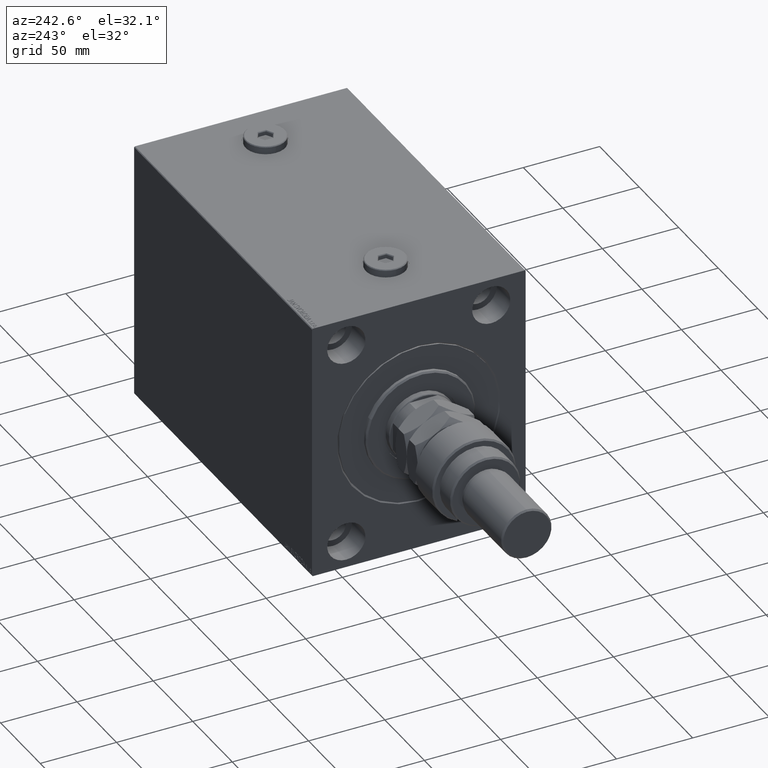
[diagram: clean part render]
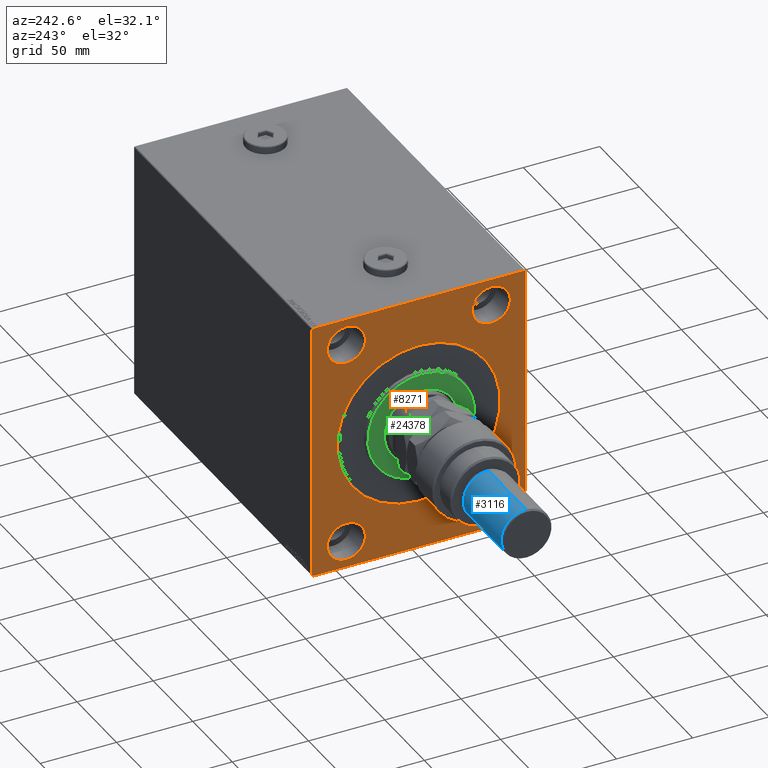
[diagram: same view with three faces highlighted in distinct colors, each labeled with its STEP entity id]
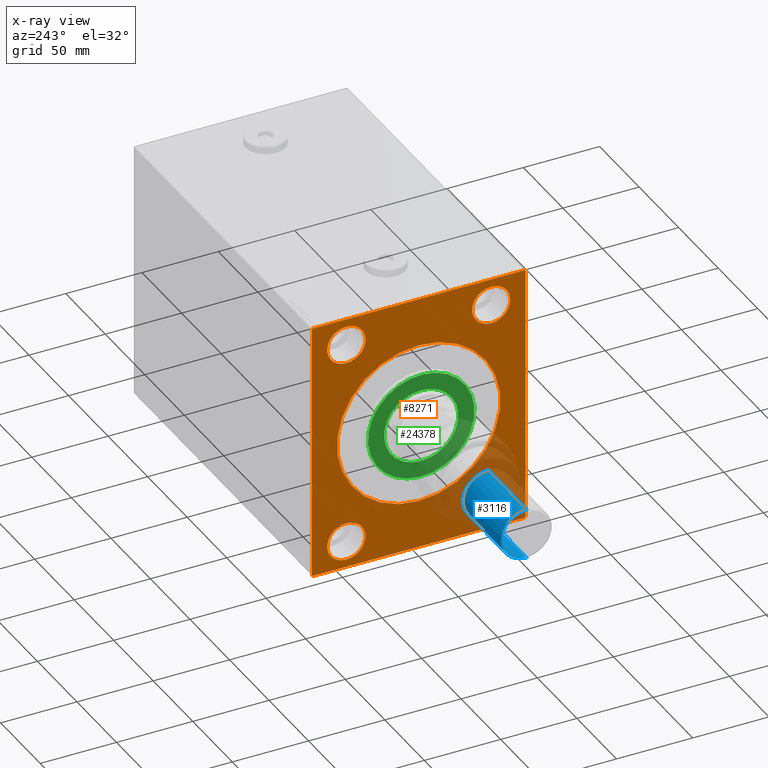
[diagram: x-ray of the same camera — body ghosted, the three highlighted faces saturated]
A machine part, auxiliary view with three faces highlighted in distinct colors.
The next image is the same camera in x-ray (body ghosted, the three faces saturated) — at least one of them is partly hidden behind the body in this view.
Their STEP definitions:

[orange] entity #8271 — the highlighted planar face has unit normal (1, 0, 0).
#947 = EDGE_CURVE ( 'NONE', #11562, #45831, #23535, .T. ) ;
#1080 = DIRECTION ( 'NONE',  ( -0.000000000000000000, -0.7071067811865376918, 0.7071067811865573427 ) ) ;
#1349 = PLANE ( 'NONE',  #42461 ) ;
#1682 = LINE ( 'NONE', #23888, #29622 ) ;
#1723 = ORIENTED_EDGE ( 'NONE', *, *, #48134, .T. ) ;
#2299 = DIRECTION ( 'NONE',  ( 0.000000000000000000, 0.000000000000000000, -1.000000000000000000 ) ) ;
#2456 = CARTESIAN_POINT ( 'NONE',  ( 0.000000000000000000, 0.000000000000000000, 0.000000000000000000 ) ) ;
#2510 = DIRECTION ( 'NONE',  ( 0.000000000000000000, -0.7071067811865573427, -0.7071067811865376918 ) ) ;
#2927 = ORIENTED_EDGE ( 'NONE', *, *, #947, .F. ) ;
#3632 = VERTEX_POINT ( 'NONE', #46007 ) ;
#3767 = CARTESIAN_POINT ( 'NONE',  ( 0.000000000000000000, 69.50000000000004263, 85.00000000000000000 ) ) ;
#3813 = EDGE_CURVE ( 'NONE', #25728, #8741, #11296, .T. ) ;
#4058 = AXIS2_PLACEMENT_3D ( 'NONE', #7843, #26160, #41273 ) ;
#5223 = LINE ( 'NONE', #20816, #15224 ) ;
#5600 = CARTESIAN_POINT ( 'NONE',  ( 0.000000000000000000, -69.99999999999998579, 84.99999999999998579 ) ) ;
#5877 = VECTOR ( 'NONE', #23368, 1000.000000000000000 ) ;
#6795 = CIRCLE ( 'NONE', #30934, 12.49999999999999645 ) ;
#7183 = CARTESIAN_POINT ( 'NONE',  ( 0.000000000000000000, 47.50000000000000711, 80.00000000000001421 ) ) ;
#7218 = EDGE_LOOP ( 'NONE', ( #47800, #2927 ) ) ;
#7333 = AXIS2_PLACEMENT_3D ( 'NONE', #32357, #47256, #39685 ) ;
#7460 = CARTESIAN_POINT ( 'NONE',  ( 0.000000000000000000, 6.551860375438332793E-15, -53.49999999999994316 ) ) ;
#7501 = EDGE_CURVE ( 'NONE', #42741, #10054, #28038, .T. ) ;
#7751 = LINE ( 'NONE', #15548, #5877 ) ;
#7843 = CARTESIAN_POINT ( 'NONE',  ( 0.000000000000000000, 47.50000000000000711, 67.50000000000000000 ) ) ;
#7857 = CARTESIAN_POINT ( 'NONE',  ( 0.000000000000000000, -47.49999999999997868, 80.00000000000001421 ) ) ;
#8146 = VERTEX_POINT ( 'NONE', #25524 ) ;
#8271 = ADVANCED_FACE ( 'NONE', ( #41351, #19630, #31102, #12558, #37944, #26710 ), #1349, .F. ) ;
#8741 = VERTEX_POINT ( 'NONE', #39808 ) ;
#8779 = EDGE_CURVE ( 'NONE', #12817, #31047, #35078, .T. ) ;
#8842 = AXIS2_PLACEMENT_3D ( 'NONE', #38520, #46089, #31426 ) ;
#9293 = ORIENTED_EDGE ( 'NONE', *, *, #7501, .F. ) ;
#10054 = VERTEX_POINT ( 'NONE', #29371 ) ;
#10449 = EDGE_CURVE ( 'NONE', #11951, #30487, #14422, .T. ) ;
#10503 = CIRCLE ( 'NONE', #41672, 12.50000000000001066 ) ;
#11296 = LINE ( 'NONE', #44263, #24364 ) ;
#11341 = EDGE_CURVE ( 'NONE', #36696, #10054, #5223, .T. ) ;
#11378 = ORIENTED_EDGE ( 'NONE', *, *, #10449, .T. ) ;
#11562 = VERTEX_POINT ( 'NONE', #28738 ) ;
#11951 = VERTEX_POINT ( 'NONE', #30603 ) ;
#12074 = CARTESIAN_POINT ( 'NONE',  ( 0.000000000000000000, 0.000000000000000000, 0.000000000000000000 ) ) ;
#12187 = AXIS2_PLACEMENT_3D ( 'NONE', #26407, #30065, #27135 ) ;
#12558 = FACE_BOUND ( 'NONE', #7218, .T. ) ;
#12817 = VERTEX_POINT ( 'NONE', #45336 ) ;
#12948 = DIRECTION ( 'NONE',  ( 0.000000000000000000, 0.000000000000000000, -1.000000000000000000 ) ) ;
#13595 = VECTOR ( 'NONE', #41912, 1000.000000000000000 ) ;
#14422 = CIRCLE ( 'NONE', #41704, 53.49999999999994316 ) ;
#15052 = CIRCLE ( 'NONE', #38446, 12.50000000000001066 ) ;
#15224 = VECTOR ( 'NONE', #1080, 1000.000000000000114 ) ;
#15454 = ORIENTED_EDGE ( 'NONE', *, *, #11341, .T. ) ;
#15548 = CARTESIAN_POINT ( 'NONE',  ( 0.000000000000000000, -69.99999999999998579, 84.49999999999998579 ) ) ;
#16076 = ORIENTED_EDGE ( 'NONE', *, *, #8779, .F. ) ;
#16300 = EDGE_CURVE ( 'NONE', #45462, #3632, #6795, .T. ) ;
#17265 = ORIENTED_EDGE ( 'NONE', *, *, #28286, .F. ) ;
#17411 = CARTESIAN_POINT ( 'NONE',  ( 0.000000000000000000, 69.50000000000004263, 85.00000000000000000 ) ) ;
#18165 = EDGE_CURVE ( 'NONE', #36163, #47028, #46479, .T. ) ;
#18512 = ORIENTED_EDGE ( 'NONE', *, *, #44496, .F. ) ;
#18666 = ORIENTED_EDGE ( 'NONE', *, *, #25749, .T. ) ;
#18893 = CARTESIAN_POINT ( 'NONE',  ( 0.000000000000000000, -69.50000000000001421, -85.00000000000002842 ) ) ;
#19251 = DIRECTION ( 'NONE',  ( 0.000000000000000000, 1.000000000000000000, 9.912705577010325549E-17 ) ) ;
#19630 = FACE_BOUND ( 'NONE', #26495, .T. ) ;
#20720 = DIRECTION ( 'NONE',  ( 0.000000000000000000, 0.000000000000000000, -1.000000000000000000 ) ) ;
#20816 = CARTESIAN_POINT ( 'NONE',  ( 0.000000000000000000, -69.50000000000001421, -85.00000000000002842 ) ) ;
#20910 = CARTESIAN_POINT ( 'NONE',  ( 0.000000000000000000, -69.99999999999998579, 84.49999999999998579 ) ) ;
#21693 = ORIENTED_EDGE ( 'NONE', *, *, #3813, .F. ) ;
#22049 = LINE ( 'NONE', #3767, #29483 ) ;
#23368 = DIRECTION ( 'NONE',  ( -0.000000000000000000, 0.7071067811865672237, 0.7071067811865279218 ) ) ;
#23466 = CARTESIAN_POINT ( 'NONE',  ( 0.000000000000000000, 47.50000000000000711, -67.50000000000000000 ) ) ;
#23535 = CIRCLE ( 'NONE', #4058, 12.50000000000001066 ) ;
#23684 = EDGE_CURVE ( 'NONE', #25728, #31047, #22049, .T. ) ;
#23888 = CARTESIAN_POINT ( 'NONE',  ( 0.000000000000000000, -69.99999999999998579, -85.00000000000002842 ) ) ;
#23927 = CARTESIAN_POINT ( 'NONE',  ( 0.000000000000000000, -47.49999999999997868, 67.50000000000000000 ) ) ;
#24020 = DIRECTION ( 'NONE',  ( 1.000000000000000000, 0.000000000000000000, 0.000000000000000000 ) ) ;
#24171 = EDGE_LOOP ( 'NONE', ( #9293, #1723, #21693, #25117, #16076, #30933, #17265, #15454 ) ) ;
#24364 = VECTOR ( 'NONE', #29117, 1000.000000000000000 ) ;
#24448 = CARTESIAN_POINT ( 'NONE',  ( 0.000000000000000000, 70.00000000000001421, 84.50000000000001421 ) ) ;
#24906 = CIRCLE ( 'NONE', #33460, 53.49999999999994316 ) ;
#25031 = EDGE_CURVE ( 'NONE', #3632, #45462, #38101, .T. ) ;
#25117 = ORIENTED_EDGE ( 'NONE', *, *, #23684, .T. ) ;
#25524 = CARTESIAN_POINT ( 'NONE',  ( 0.000000000000000000, 69.50000000000007105, -85.00000000000001421 ) ) ;
#25728 = VERTEX_POINT ( 'NONE', #17411 ) ;
#25749 = EDGE_CURVE ( 'NONE', #30487, #11951, #24906, .T. ) ;
#26160 = DIRECTION ( 'NONE',  ( -1.000000000000000000, 0.000000000000000000, 0.000000000000000000 ) ) ;
#26407 = CARTESIAN_POINT ( 'NONE',  ( 0.000000000000000000, -47.49999999999999289, -67.50000000000000000 ) ) ;
#26469 = DIRECTION ( 'NONE',  ( 0.000000000000000000, 0.000000000000000000, -1.000000000000000000 ) ) ;
#26495 = EDGE_LOOP ( 'NONE', ( #31766, #37300 ) ) ;
#26612 = CARTESIAN_POINT ( 'NONE',  ( 0.000000000000000000, 47.50000000000000711, -67.50000000000000000 ) ) ;
#26710 = FACE_OUTER_BOUND ( 'NONE', #24171, .T. ) ;
#27065 = VERTEX_POINT ( 'NONE', #28131 ) ;
#27135 = DIRECTION ( 'NONE',  ( 0.000000000000000000, 0.000000000000000000, 1.000000000000000000 ) ) ;
#27821 = DIRECTION ( 'NONE',  ( 0.000000000000000000, 0.000000000000000000, 1.000000000000000000 ) ) ;
#28038 = LINE ( 'NONE', #5600, #38517 ) ;
#28131 = CARTESIAN_POINT ( 'NONE',  ( 0.000000000000000000, -47.49999999999997868, 55.00000000000000000 ) ) ;
#28286 = EDGE_CURVE ( 'NONE', #36696, #8146, #1682, .T. ) ;
#28738 = CARTESIAN_POINT ( 'NONE',  ( 0.000000000000000000, 47.50000000000000711, 55.00000000000000000 ) ) ;
#29117 = DIRECTION ( 'NONE',  ( 0.000000000000000000, -1.000000000000000000, -9.912705577010325549E-17 ) ) ;
#29371 = CARTESIAN_POINT ( 'NONE',  ( 0.000000000000000000, -69.99999999999998579, -84.50000000000004263 ) ) ;
#29483 = VECTOR ( 'NONE', #48177, 1000.000000000000114 ) ;
#29622 = VECTOR ( 'NONE', #19251, 1000.000000000000000 ) ;
#30065 = DIRECTION ( 'NONE',  ( -1.000000000000000000, 0.000000000000000000, 0.000000000000000000 ) ) ;
#30487 = VERTEX_POINT ( 'NONE', #7460 ) ;
#30585 = DIRECTION ( 'NONE',  ( -1.000000000000000000, 0.000000000000000000, 0.000000000000000000 ) ) ;
#30603 = CARTESIAN_POINT ( 'NONE',  ( 0.000000000000000000, 0.000000000000000000, 53.49999999999994316 ) ) ;
#30933 = ORIENTED_EDGE ( 'NONE', *, *, #35487, .T. ) ;
#30934 = AXIS2_PLACEMENT_3D ( 'NONE', #26612, #41992, #41495 ) ;
#31047 = VERTEX_POINT ( 'NONE', #24448 ) ;
#31102 = FACE_BOUND ( 'NONE', #41020, .T. ) ;
#31426 = DIRECTION ( 'NONE',  ( 0.000000000000000000, 0.000000000000000000, 1.000000000000000000 ) ) ;
#31766 = ORIENTED_EDGE ( 'NONE', *, *, #16300, .F. ) ;
#32357 = CARTESIAN_POINT ( 'NONE',  ( 0.000000000000000000, 47.50000000000000711, 67.50000000000000000 ) ) ;
#32899 = VECTOR ( 'NONE', #2510, 1000.000000000000114 ) ;
#33460 = AXIS2_PLACEMENT_3D ( 'NONE', #39381, #24020, #2299 ) ;
#33724 = DIRECTION ( 'NONE',  ( 0.000000000000000000, 0.000000000000000000, 1.000000000000000000 ) ) ;
#33852 = CIRCLE ( 'NONE', #7333, 12.50000000000001066 ) ;
#35039 = EDGE_LOOP ( 'NONE', ( #39806, #18512 ) ) ;
#35078 = LINE ( 'NONE', #45821, #13595 ) ;
#35135 = ORIENTED_EDGE ( 'NONE', *, *, #43273, .F. ) ;
#35487 = EDGE_CURVE ( 'NONE', #12817, #8146, #46912, .T. ) ;
#35693 = CARTESIAN_POINT ( 'NONE',  ( 0.000000000000000000, 70.00000000000002842, -84.50000000000007105 ) ) ;
#36163 = VERTEX_POINT ( 'NONE', #41699 ) ;
#36353 = ORIENTED_EDGE ( 'NONE', *, *, #38747, .F. ) ;
#36696 = VERTEX_POINT ( 'NONE', #18893 ) ;
#37104 = VERTEX_POINT ( 'NONE', #7857 ) ;
#37300 = ORIENTED_EDGE ( 'NONE', *, *, #25031, .F. ) ;
#37620 = DIRECTION ( 'NONE',  ( -1.000000000000000000, 0.000000000000000000, 0.000000000000000000 ) ) ;
#37944 = FACE_BOUND ( 'NONE', #35039, .T. ) ;
#38101 = CIRCLE ( 'NONE', #39677, 12.49999999999999645 ) ;
#38446 = AXIS2_PLACEMENT_3D ( 'NONE', #45231, #30585, #45476 ) ;
#38517 = VECTOR ( 'NONE', #20720, 1000.000000000000000 ) ;
#38520 = CARTESIAN_POINT ( 'NONE',  ( 0.000000000000000000, -47.49999999999999289, -67.50000000000000000 ) ) ;
#38747 = EDGE_CURVE ( 'NONE', #37104, #27065, #15052, .T. ) ;
#39381 = CARTESIAN_POINT ( 'NONE',  ( 0.000000000000000000, 0.000000000000000000, 0.000000000000000000 ) ) ;
#39547 = CARTESIAN_POINT ( 'NONE',  ( 0.000000000000000000, 47.50000000000000711, -55.00000000000000711 ) ) ;
#39677 = AXIS2_PLACEMENT_3D ( 'NONE', #23466, #37620, #33724 ) ;
#39685 = DIRECTION ( 'NONE',  ( 0.000000000000000000, 0.000000000000000000, 1.000000000000000000 ) ) ;
#39806 = ORIENTED_EDGE ( 'NONE', *, *, #18165, .F. ) ;
#39808 = CARTESIAN_POINT ( 'NONE',  ( 0.000000000000000000, -69.49999999999997158, 84.99999999999998579 ) ) ;
#41020 = EDGE_LOOP ( 'NONE', ( #36353, #35135 ) ) ;
#41273 = DIRECTION ( 'NONE',  ( 0.000000000000000000, 0.000000000000000000, 1.000000000000000000 ) ) ;
#41351 = FACE_BOUND ( 'NONE', #41683, .T. ) ;
#41495 = DIRECTION ( 'NONE',  ( 0.000000000000000000, 0.000000000000000000, 1.000000000000000000 ) ) ;
#41595 = DIRECTION ( 'NONE',  ( 1.000000000000000000, 0.000000000000000000, 0.000000000000000000 ) ) ;
#41672 = AXIS2_PLACEMENT_3D ( 'NONE', #23927, #42960, #27821 ) ;
#41683 = EDGE_LOOP ( 'NONE', ( #11378, #18666 ) ) ;
#41699 = CARTESIAN_POINT ( 'NONE',  ( 0.000000000000000000, -47.49999999999999289, -55.00000000000000711 ) ) ;
#41704 = AXIS2_PLACEMENT_3D ( 'NONE', #2456, #43451, #12948 ) ;
#41912 = DIRECTION ( 'NONE',  ( 0.000000000000000000, -8.163404592832031500E-17, 1.000000000000000000 ) ) ;
#41992 = DIRECTION ( 'NONE',  ( -1.000000000000000000, 0.000000000000000000, 0.000000000000000000 ) ) ;
#42461 = AXIS2_PLACEMENT_3D ( 'NONE', #12074, #41595, #26469 ) ;
#42741 = VERTEX_POINT ( 'NONE', #20910 ) ;
#42960 = DIRECTION ( 'NONE',  ( -1.000000000000000000, 0.000000000000000000, 0.000000000000000000 ) ) ;
#43273 = EDGE_CURVE ( 'NONE', #27065, #37104, #10503, .T. ) ;
#43422 = CARTESIAN_POINT ( 'NONE',  ( 0.000000000000000000, -47.49999999999999289, -80.00000000000000000 ) ) ;
#43451 = DIRECTION ( 'NONE',  ( 1.000000000000000000, 0.000000000000000000, 0.000000000000000000 ) ) ;
#44263 = CARTESIAN_POINT ( 'NONE',  ( 0.000000000000000000, 70.00000000000001421, 85.00000000000000000 ) ) ;
#44496 = EDGE_CURVE ( 'NONE', #47028, #36163, #47022, .T. ) ;
#45231 = CARTESIAN_POINT ( 'NONE',  ( 0.000000000000000000, -47.49999999999997868, 67.50000000000000000 ) ) ;
#45336 = CARTESIAN_POINT ( 'NONE',  ( 0.000000000000000000, 70.00000000000002842, -84.50000000000007105 ) ) ;
#45462 = VERTEX_POINT ( 'NONE', #39547 ) ;
#45476 = DIRECTION ( 'NONE',  ( 0.000000000000000000, 0.000000000000000000, 1.000000000000000000 ) ) ;
#45821 = CARTESIAN_POINT ( 'NONE',  ( 0.000000000000000000, 70.00000000000002842, -85.00000000000001421 ) ) ;
#45831 = VERTEX_POINT ( 'NONE', #7183 ) ;
#46007 = CARTESIAN_POINT ( 'NONE',  ( 0.000000000000000000, 47.50000000000000711, -80.00000000000000000 ) ) ;
#46089 = DIRECTION ( 'NONE',  ( -1.000000000000000000, 0.000000000000000000, 0.000000000000000000 ) ) ;
#46296 = EDGE_CURVE ( 'NONE', #45831, #11562, #33852, .T. ) ;
#46479 = CIRCLE ( 'NONE', #12187, 12.49999999999999645 ) ;
#46912 = LINE ( 'NONE', #35693, #32899 ) ;
#47022 = CIRCLE ( 'NONE', #8842, 12.49999999999999645 ) ;
#47028 = VERTEX_POINT ( 'NONE', #43422 ) ;
#47256 = DIRECTION ( 'NONE',  ( -1.000000000000000000, 0.000000000000000000, 0.000000000000000000 ) ) ;
#47800 = ORIENTED_EDGE ( 'NONE', *, *, #46296, .F. ) ;
#48134 = EDGE_CURVE ( 'NONE', #42741, #8741, #7751, .T. ) ;
#48177 = DIRECTION ( 'NONE',  ( -0.000000000000000000, 0.7071067811865376918, -0.7071067811865573427 ) ) ;

[blue] entity #3116 — the highlighted cylindrical surface (edge-blend (fillet) strip) has radius 16.5 mm, axis along (1, -0, -0).
#1802 = VECTOR ( 'NONE', #46174, 1000.000000000000000 ) ;
#2231 = CIRCLE ( 'NONE', #12365, 16.50000000000000000 ) ;
#3024 = CYLINDRICAL_SURFACE ( 'NONE', #44604, 16.50000000000000000 ) ;
#3116 = ADVANCED_FACE ( 'NONE', ( #34161 ), #3024, .T. ) ;
#3351 = VERTEX_POINT ( 'NONE', #19944 ) ;
#3955 = AXIS2_PLACEMENT_3D ( 'NONE', #20185, #24088, #8721 ) ;
#4643 = CARTESIAN_POINT ( 'NONE',  ( 16.50000000000000000, 2.020667218593133100E-15, 39.99999999999998579 ) ) ;
#4703 = EDGE_LOOP ( 'NONE', ( #17015, #44562, #23141, #37547 ) ) ;
#5137 = CARTESIAN_POINT ( 'NONE',  ( -16.50000000000000000, 0.000000000000000000, 88.00000000000001421 ) ) ;
#8721 = DIRECTION ( 'NONE',  ( 1.000000000000000000, 0.000000000000000000, 0.000000000000000000 ) ) ;
#12365 = AXIS2_PLACEMENT_3D ( 'NONE', #16249, #46740, #30892 ) ;
#16249 = CARTESIAN_POINT ( 'NONE',  ( 0.000000000000000000, 0.000000000000000000, 88.00000000000001421 ) ) ;
#17015 = ORIENTED_EDGE ( 'NONE', *, *, #23499, .T. ) ;
#18363 = CARTESIAN_POINT ( 'NONE',  ( 0.000000000000000000, 0.000000000000000000, 89.00000000000000000 ) ) ;
#19812 = CARTESIAN_POINT ( 'NONE',  ( 16.50000000000000000, 2.020667218593133100E-15, 89.00000000000000000 ) ) ;
#19944 = CARTESIAN_POINT ( 'NONE',  ( -16.50000000000000000, 0.000000000000000000, 39.99999999999998579 ) ) ;
#20185 = CARTESIAN_POINT ( 'NONE',  ( 0.000000000000000000, 0.000000000000000000, 39.99999999999998579 ) ) ;
#22171 = VERTEX_POINT ( 'NONE', #5137 ) ;
#23141 = ORIENTED_EDGE ( 'NONE', *, *, #32887, .T. ) ;
#23211 = CARTESIAN_POINT ( 'NONE',  ( 16.50000000000000000, 2.020667218593133100E-15, 88.00000000000001421 ) ) ;
#23499 = EDGE_CURVE ( 'NONE', #22171, #45394, #2231, .T. ) ;
#24088 = DIRECTION ( 'NONE',  ( -0.000000000000000000, -0.000000000000000000, 1.000000000000000000 ) ) ;
#25009 = CIRCLE ( 'NONE', #3955, 16.50000000000000000 ) ;
#25465 = DIRECTION ( 'NONE',  ( -1.000000000000000000, 0.000000000000000000, 0.000000000000000000 ) ) ;
#26840 = DIRECTION ( 'NONE',  ( -0.000000000000000000, -0.000000000000000000, -1.000000000000000000 ) ) ;
#27380 = LINE ( 'NONE', #19812, #1802 ) ;
#30892 = DIRECTION ( 'NONE',  ( 1.000000000000000000, 0.000000000000000000, 0.000000000000000000 ) ) ;
#32887 = EDGE_CURVE ( 'NONE', #33880, #3351, #25009, .T. ) ;
#33880 = VERTEX_POINT ( 'NONE', #4643 ) ;
#34161 = FACE_OUTER_BOUND ( 'NONE', #4703, .T. ) ;
#34167 = LINE ( 'NONE', #45379, #45558 ) ;
#37547 = ORIENTED_EDGE ( 'NONE', *, *, #47825, .F. ) ;
#37876 = EDGE_CURVE ( 'NONE', #45394, #33880, #27380, .T. ) ;
#43775 = DIRECTION ( 'NONE',  ( -0.000000000000000000, -0.000000000000000000, -1.000000000000000000 ) ) ;
#44562 = ORIENTED_EDGE ( 'NONE', *, *, #37876, .T. ) ;
#44604 = AXIS2_PLACEMENT_3D ( 'NONE', #18363, #43775, #25465 ) ;
#45379 = CARTESIAN_POINT ( 'NONE',  ( -16.50000000000000000, 0.000000000000000000, 89.00000000000000000 ) ) ;
#45394 = VERTEX_POINT ( 'NONE', #23211 ) ;
#45558 = VECTOR ( 'NONE', #26840, 1000.000000000000000 ) ;
#46174 = DIRECTION ( 'NONE',  ( -0.000000000000000000, -0.000000000000000000, -1.000000000000000000 ) ) ;
#46740 = DIRECTION ( 'NONE',  ( 0.000000000000000000, 0.000000000000000000, -1.000000000000000000 ) ) ;
#47825 = EDGE_CURVE ( 'NONE', #22171, #3351, #34167, .T. ) ;

[green] entity #24378 — the highlighted planar face has unit normal (-1, 0, 0).
#1025 = VERTEX_POINT ( 'NONE', #12961 ) ;
#1350 = CARTESIAN_POINT ( 'NONE',  ( 3.000000000000000000, 0.000000000000000000, 0.000000000000000000 ) ) ;
#2438 = CIRCLE ( 'NONE', #39838, 24.25000000000000000 ) ;
#5046 = FACE_BOUND ( 'NONE', #38759, .T. ) ;
#6694 = EDGE_CURVE ( 'NONE', #1025, #16954, #46294, .T. ) ;
#7058 = CIRCLE ( 'NONE', #11718, 35.00000000000002842 ) ;
#8463 = DIRECTION ( 'NONE',  ( 0.000000000000000000, 0.000000000000000000, -1.000000000000000000 ) ) ;
#8705 = DIRECTION ( 'NONE',  ( 1.000000000000000000, -0.000000000000000000, 0.000000000000000000 ) ) ;
#8899 = DIRECTION ( 'NONE',  ( -1.000000000000000000, 0.000000000000000000, -0.000000000000000000 ) ) ;
#9867 = CARTESIAN_POINT ( 'NONE',  ( 3.000000000000000000, 0.000000000000000000, 0.000000000000000000 ) ) ;
#11079 = EDGE_LOOP ( 'NONE', ( #15760, #31345 ) ) ;
#11630 = CARTESIAN_POINT ( 'NONE',  ( 3.000000000000000000, 0.000000000000000000, 0.000000000000000000 ) ) ;
#11718 = AXIS2_PLACEMENT_3D ( 'NONE', #45114, #16070, #12649 ) ;
#12649 = DIRECTION ( 'NONE',  ( 0.000000000000000000, 0.000000000000000000, -1.000000000000000000 ) ) ;
#12961 = CARTESIAN_POINT ( 'NONE',  ( 3.000000000000000000, 2.969768487932331287E-15, -24.25000000000000000 ) ) ;
#15760 = ORIENTED_EDGE ( 'NONE', *, *, #27600, .T. ) ;
#15854 = AXIS2_PLACEMENT_3D ( 'NONE', #1350, #8899, #20357 ) ;
#16070 = DIRECTION ( 'NONE',  ( 1.000000000000000000, -0.000000000000000000, 0.000000000000000000 ) ) ;
#16954 = VERTEX_POINT ( 'NONE', #20751 ) ;
#17422 = DIRECTION ( 'NONE',  ( 0.000000000000000000, 0.000000000000000000, -1.000000000000000000 ) ) ;
#19799 = AXIS2_PLACEMENT_3D ( 'NONE', #27861, #42763, #35430 ) ;
#20357 = DIRECTION ( 'NONE',  ( 0.000000000000000000, 0.000000000000000000, -1.000000000000000000 ) ) ;
#20751 = CARTESIAN_POINT ( 'NONE',  ( 3.000000000000000000, 0.000000000000000000, 24.25000000000000000 ) ) ;
#20958 = AXIS2_PLACEMENT_3D ( 'NONE', #11630, #8705, #8463 ) ;
#24378 = ADVANCED_FACE ( 'NONE', ( #45553, #5046 ), #27009, .T. ) ;
#27009 = PLANE ( 'NONE',  #20958 ) ;
#27600 = EDGE_CURVE ( 'NONE', #44634, #32340, #7058, .T. ) ;
#27861 = CARTESIAN_POINT ( 'NONE',  ( 3.000000000000000000, 0.000000000000000000, 0.000000000000000000 ) ) ;
#28242 = CARTESIAN_POINT ( 'NONE',  ( 3.000000000000000000, 0.000000000000000000, 35.00000000000002842 ) ) ;
#31345 = ORIENTED_EDGE ( 'NONE', *, *, #41313, .T. ) ;
#31546 = CARTESIAN_POINT ( 'NONE',  ( 3.000000000000000000, 4.347496136973104859E-15, -35.00000000000002842 ) ) ;
#32340 = VERTEX_POINT ( 'NONE', #31546 ) ;
#33300 = EDGE_CURVE ( 'NONE', #16954, #1025, #2438, .T. ) ;
#33522 = ORIENTED_EDGE ( 'NONE', *, *, #6694, .T. ) ;
#35430 = DIRECTION ( 'NONE',  ( 0.000000000000000000, 0.000000000000000000, -1.000000000000000000 ) ) ;
#38518 = CIRCLE ( 'NONE', #19799, 35.00000000000002842 ) ;
#38759 = EDGE_LOOP ( 'NONE', ( #46987, #33522 ) ) ;
#39838 = AXIS2_PLACEMENT_3D ( 'NONE', #9867, #46956, #17422 ) ;
#41313 = EDGE_CURVE ( 'NONE', #32340, #44634, #38518, .T. ) ;
#42763 = DIRECTION ( 'NONE',  ( 1.000000000000000000, -0.000000000000000000, 0.000000000000000000 ) ) ;
#44634 = VERTEX_POINT ( 'NONE', #28242 ) ;
#45114 = CARTESIAN_POINT ( 'NONE',  ( 3.000000000000000000, 0.000000000000000000, 0.000000000000000000 ) ) ;
#45553 = FACE_OUTER_BOUND ( 'NONE', #11079, .T. ) ;
#46294 = CIRCLE ( 'NONE', #15854, 24.25000000000000000 ) ;
#46956 = DIRECTION ( 'NONE',  ( -1.000000000000000000, 0.000000000000000000, -0.000000000000000000 ) ) ;
#46987 = ORIENTED_EDGE ( 'NONE', *, *, #33300, .T. ) ;